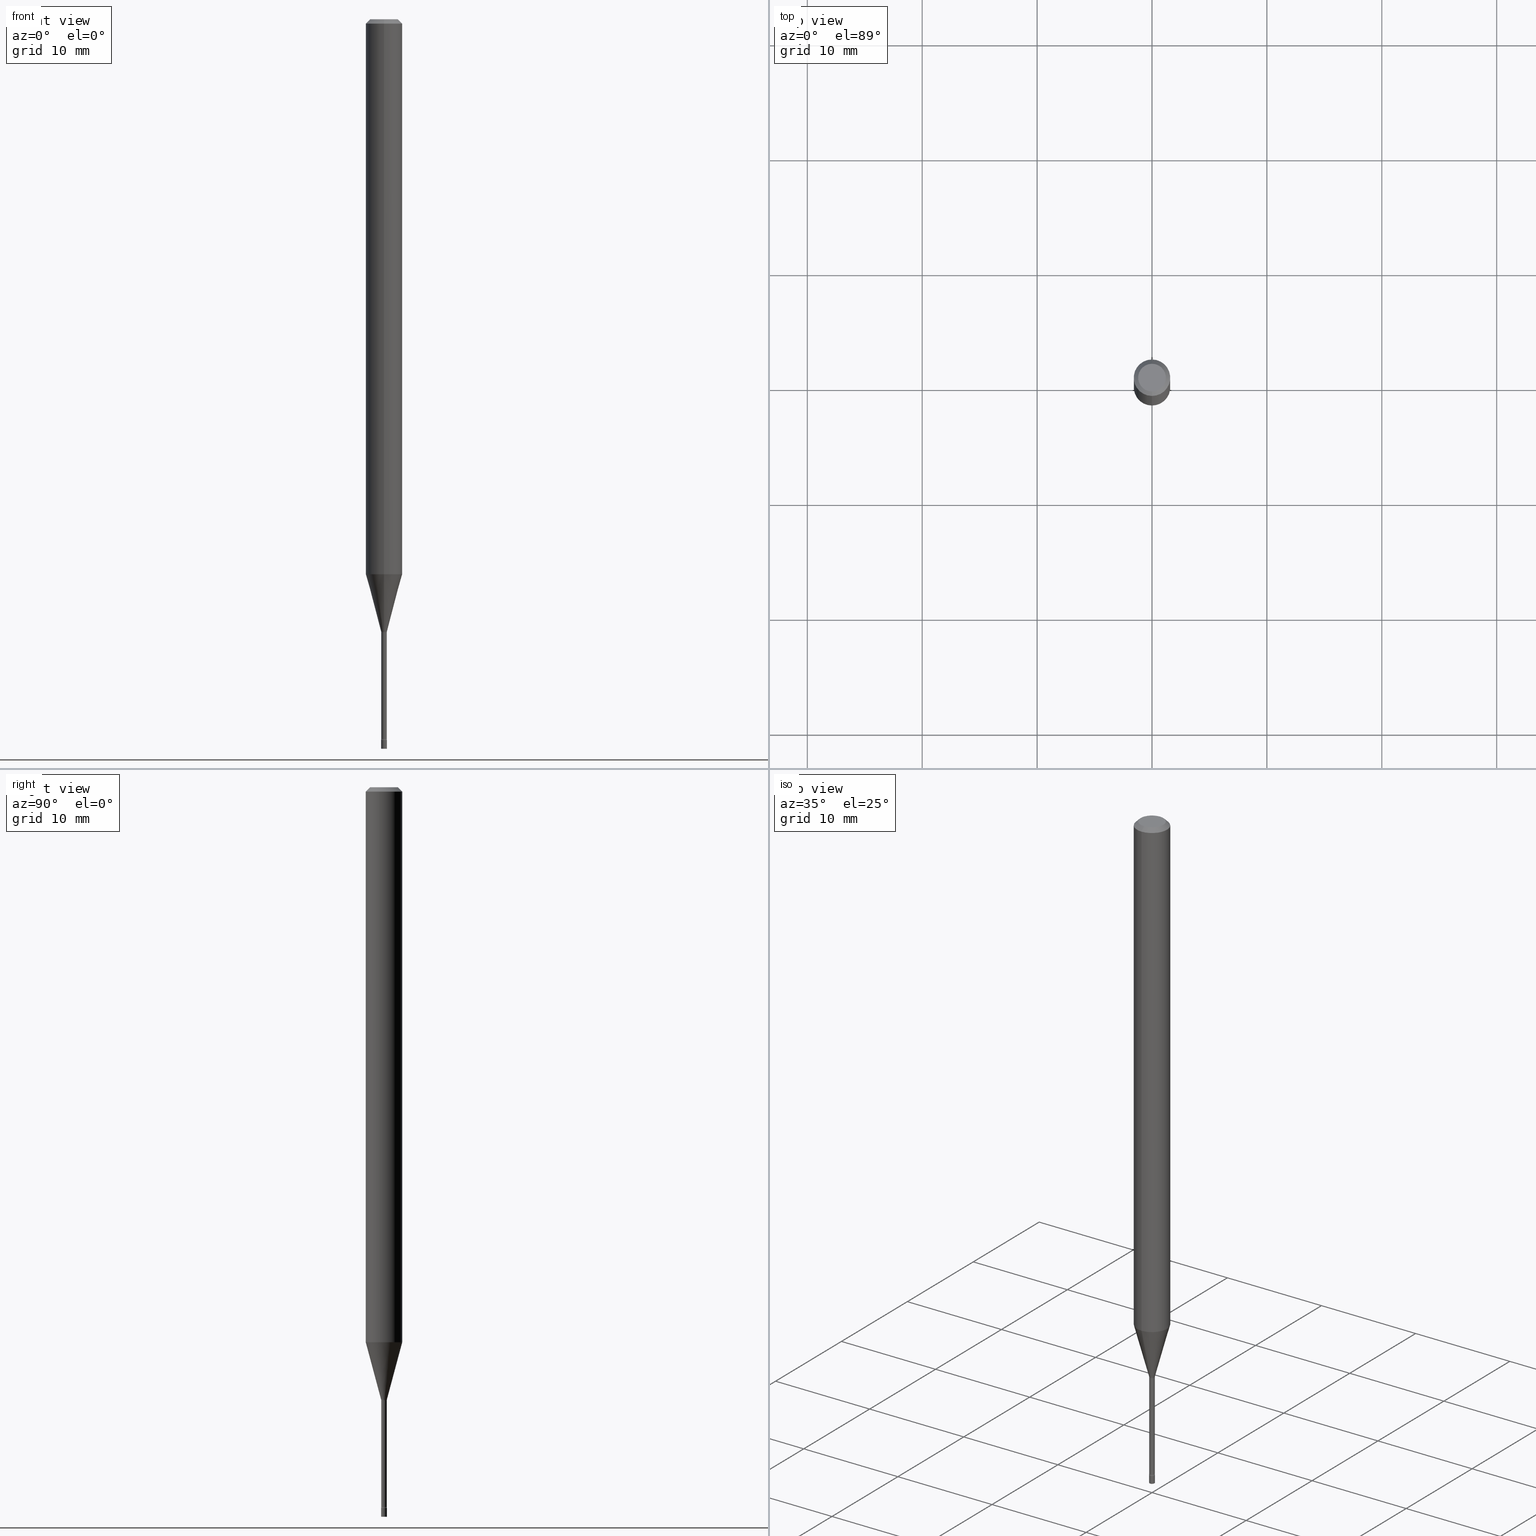
[diagram: canonical four-view strip — front | top / right | iso, engineering-drawing reading convention]
A machine part, canonical four-view strip (front | top / right | iso — engineering-drawing reading convention). The complete STEP part file that produces these views, byte-faithful:
ISO-10303-21;
HEADER;
FILE_DESCRIPTION (( 'STEP AP203' ),
    '1' );
FILE_NAME ('03645.STEP',
    '2024-03-08T22:19:13',
    ( '' ),
    ( '' ),
    'SwSTEP 2.0',
    'SolidWorks 2023',
    '' );
FILE_SCHEMA (( 'CONFIG_CONTROL_DESIGN' ));
ENDSEC;

DATA;
#1 = AXIS2_PLACEMENT_3D ( 'NONE', #275, #69, #158 ) ;
#2 = CC_DESIGN_APPROVAL ( #253, ( #514 ) ) ;
#3 = CARTESIAN_POINT ( 'NONE',  ( 0.000000000000000000, 0.000000000000000000, 0.000000000000000000 ) ) ;
#4 = CARTESIAN_POINT ( 'NONE',  ( 6.892264536879020353E-17, 0.009399999999991423896, -2.465800000000000214 ) ) ;
#5 = EDGE_CURVE ( 'NONE', #497, #377, #201, .T. ) ;
#6 = DIRECTION ( 'NONE',  ( -2.445405021934253134E-29, 3.491572681520784952E-15, 1.000000000000000000 ) ) ;
#7 = EDGE_CURVE ( 'NONE', #459, #368, #480, .T. ) ;
#8 = CIRCLE ( 'NONE', #76, 0.04749999999999999362 ) ;
#9 = AXIS2_PLACEMENT_3D ( 'NONE', #484, #375, #338 ) ;
#10 = CARTESIAN_POINT ( 'NONE',  ( 6.040307951277287977E-29, -8.623958906942569995E-15, -2.470000000000000195 ) ) ;
#11 = DIRECTION ( 'NONE',  ( -2.445468806185136597E-29, 3.491481338843145583E-15, 1.000000000000000000 ) ) ;
#12 = CALENDAR_DATE ( 2024, 8, 3 ) ;
#13 = ORIENTED_EDGE ( 'NONE', *, *, #135, .F. ) ;
#14 = EDGE_CURVE ( 'NONE', #372, #96, #35, .T. ) ;
#15 = LINE ( 'NONE', #327, #77 ) ;
#16 = ORIENTED_EDGE ( 'NONE', *, *, #379, .F. ) ;
#17 = DATE_AND_TIME ( #12, #133 ) ;
#18 = DIRECTION ( 'NONE',  ( 1.000000000000000000, -6.982962677686235945E-15, 0.000000000000000000 ) ) ;
#19 = CIRCLE ( 'NONE', #312, 0.01000000000000000021 ) ;
#20 = DIRECTION ( 'NONE',  ( -2.445405021934253134E-29, 3.491572681520784952E-15, 1.000000000000000000 ) ) ;
#21 = CARTESIAN_POINT ( 'NONE',  ( 5.140313774130382338E-29, -7.339005745148683013E-15, -2.101974787463810834 ) ) ;
#22 = ORIENTED_EDGE ( 'NONE', *, *, #295, .T. ) ;
#23 = DIRECTION ( 'NONE',  ( 0.000000000000000000, 0.000000000000000000, 1.000000000000000000 ) ) ;
#24 = ORIENTED_EDGE ( 'NONE', *, *, #119, .F. ) ;
#25 = COORDINATED_UNIVERSAL_TIME_OFFSET ( 5, 0, .BEHIND. ) ;
#26 = ORIENTED_EDGE ( 'NONE', *, *, #294, .T. ) ;
#27 = COORDINATED_UNIVERSAL_TIME_OFFSET ( 5, 0, .BEHIND. ) ;
#28 = PLANE ( 'NONE',  #501 ) ;
#29 = VECTOR ( 'NONE', #78, 39.37007874015748143 ) ;
#30 = CC_DESIGN_APPROVAL ( #428, ( #499 ) ) ;
#31 = CARTESIAN_POINT ( 'NONE',  ( 7.042269065260026074E-17, 0.009911112605656653002, -2.098092501787272912 ) ) ;
#32 = DATE_AND_TIME ( #511, #352 ) ;
#33 = CARTESIAN_POINT ( 'NONE',  ( -6.563984917025101170E-17, -0.009400000000000015982, 3.282078320629543527E-17 ) ) ;
#34 = FACE_OUTER_BOUND ( 'NONE', #506, .T. ) ;
#35 = CIRCLE ( 'NONE', #325, 0.009911112605663977004 ) ;
#36 = AXIS2_PLACEMENT_3D ( 'NONE', #122, #434, #283 ) ;
#37 = ORGANIZATION ( 'UNSPECIFIED', 'UNSPECIFIED', '' ) ;
#38 = CARTESIAN_POINT ( 'NONE',  ( 6.679101716144951870E-17, 0.009400000000000015982, -3.282078320629543527E-17 ) ) ;
#39 = EDGE_LOOP ( 'NONE', ( #219, #334, #116, #54 ) ) ;
#40 = CC_DESIGN_PERSON_AND_ORGANIZATION_ASSIGNMENT ( #343, #71, ( #402 ) ) ;
#41 = DIRECTION ( 'NONE',  ( -2.445405021934253134E-29, 3.491572681520784952E-15, 1.000000000000000000 ) ) ;
#42 = ADVANCED_FACE ( 'NONE', ( #387 ), #310, .T. ) ;
#43 = CARTESIAN_POINT ( 'NONE',  ( -4.287811248607203282E-16, -0.06250000000000005551, -0.01499999999999981209 ) ) ;
#44 = ORIENTED_EDGE ( 'NONE', *, *, #419, .T. ) ;
#45 = AXIS2_PLACEMENT_3D ( 'NONE', #95, #450, #102 ) ;
#46 = EDGE_CURVE ( 'NONE', #451, #339, #8, .T. ) ;
#47 = CARTESIAN_POINT ( 'NONE',  ( -0.01000000000000000021, -8.605276853449206598E-15, -2.500000000000000000 ) ) ;
#48 = DIRECTION ( 'NONE',  ( -2.445405021934253134E-29, 3.491572681520784952E-15, 1.000000000000000000 ) ) ;
#49 = CYLINDRICAL_SURFACE ( 'NONE', #346, 0.009400000000000015982 ) ;
#50 = AXIS2_PLACEMENT_3D ( 'NONE', #182, #487, #293 ) ;
#51 = AXIS2_PLACEMENT_3D ( 'NONE', #473, #41, #87 ) ;
#52 = CARTESIAN_POINT ( 'NONE',  ( 3.668107532901386708E-31, -5.237359022281188472E-17, -0.01500000000000003067 ) ) ;
#53 = CARTESIAN_POINT ( 'NONE',  ( 5.130685940353198878E-29, -7.325642462544040925E-15, -2.098092501787272912 ) ) ;
#54 = ORIENTED_EDGE ( 'NONE', *, *, #399, .F. ) ;
#55 = CARTESIAN_POINT ( 'NONE',  ( 5.130685940353198878E-29, -7.325642462544040925E-15, -2.098092501787272912 ) ) ;
#56 = ORIENTED_EDGE ( 'NONE', *, *, #357, .T. ) ;
#57 = DATE_AND_TIME ( #278, #176 ) ;
#58 = FACE_OUTER_BOUND ( 'NONE', #416, .T. ) ;
#59 = CONICAL_SURFACE ( 'NONE', #237, 0.06250000000000000000, 0.7853981633974483900 ) ;
#60 = PRODUCT_RELATED_PRODUCT_CATEGORY ( 'detail', '', ( #402 ) ) ;
#61 = DIRECTION ( 'NONE',  ( -2.445405021934253134E-29, 3.491572681520784952E-15, 1.000000000000000000 ) ) ;
#62 = PERSON_AND_ORGANIZATION ( #142, #37 ) ;
#63 = VERTEX_POINT ( 'NONE', #110 ) ;
#64 = APPLICATION_CONTEXT ( 'configuration controlled 3d designs of mechanical parts and assemblies' ) ;
#65 = DIMENSIONAL_EXPONENTS ( 1.000000000000000000, 0.000000000000000000, 0.000000000000000000, 0.000000000000000000, 0.000000000000000000, 0.000000000000000000, 0.000000000000000000 ) ;
#66 = COORDINATED_UNIVERSAL_TIME_OFFSET ( 5, 0, .BEHIND. ) ;
#67 = DIRECTION ( 'NONE',  ( -2.445405021934253134E-29, 3.491572681520784952E-15, 1.000000000000000000 ) ) ;
#68 = PERSON_AND_ORGANIZATION ( #142, #37 ) ;
#69 = DIRECTION ( 'NONE',  ( -2.445405021934253134E-29, 3.491572681520784952E-15, 1.000000000000000000 ) ) ;
#70 = AXIS2_PLACEMENT_3D ( 'NONE', #173, #322, #475 ) ;
#71 = PERSON_AND_ORGANIZATION_ROLE ( 'design_owner' ) ;
#72 = DIRECTION ( 'NONE',  ( -2.445405021934253134E-29, 3.491572681520784952E-15, 1.000000000000000000 ) ) ;
#73 = FACE_OUTER_BOUND ( 'NONE', #342, .T. ) ;
#74 = DIRECTION ( 'NONE',  ( -2.445405021934253134E-29, 3.491572681520784952E-15, 1.000000000000000000 ) ) ;
#75 = ADVANCED_FACE ( 'NONE', ( #465 ), #365, .F. ) ;
#76 = AXIS2_PLACEMENT_3D ( 'NONE', #469, #67, #240 ) ;
#77 = VECTOR ( 'NONE', #220, 39.37007874015748143 ) ;
#78 = DIRECTION ( 'NONE',  ( -2.445468806185136877E-29, 3.491481338843145188E-15, 1.000000000000000000 ) ) ;
#79 = ORIENTED_EDGE ( 'NONE', *, *, #448, .T. ) ;
#80 = EDGE_CURVE ( 'NONE', #368, #459, #432, .T. ) ;
#81 = MANIFOLD_SOLID_BREP ( 'Body-Move/Copy2[1]', #131 ) ;
#82 = DIRECTION ( 'NONE',  ( -2.445405021934253134E-29, 3.491572681520784952E-15, 1.000000000000000000 ) ) ;
#83 = CARTESIAN_POINT ( 'NONE',  ( 0.01000000000000000021, -8.798532973884726663E-15, -2.500000000000000000 ) ) ;
#84 = CIRCLE ( 'NONE', #225, 0.01000000000000000021 ) ;
#85 = LINE ( 'NONE', #43, #170 ) ;
#86 = ORIENTED_EDGE ( 'NONE', *, *, #14, .F. ) ;
#87 = DIRECTION ( 'NONE',  ( -6.982962677686265922E-15, -1.000000000000000000, 3.491572681520784952E-15 ) ) ;
#88 = FACE_OUTER_BOUND ( 'NONE', #123, .T. ) ;
#89 = MANIFOLD_SOLID_BREP ( 'Body-Move/Copy2[2]', #415 ) ;
#90 = CC_DESIGN_PERSON_AND_ORGANIZATION_ASSIGNMENT ( #163, #236, ( #499 ) ) ;
#91 = PERSON_AND_ORGANIZATION_ROLE ( 'creator' ) ;
#92 = CIRCLE ( 'NONE', #491, 0.01500000000000001506 ) ;
#93 = ADVANCED_BREP_SHAPE_REPRESENTATION ( '03645', ( #81, #89, #252 ), #504 ) ;
#94 = LOCAL_TIME ( 17, 19, 13.00000000000000000, #27 ) ;
#95 = CARTESIAN_POINT ( 'NONE',  ( 6.982962677692306673E-17, 0.009999999999991375163, -2.470000000000000195 ) ) ;
#96 = VERTEX_POINT ( 'NONE', #244 ) ;
#97 = APPROVAL_DATE_TIME ( #17, #127 ) ;
#98 = CARTESIAN_POINT ( 'NONE',  ( 0.000000000000000000, 0.000000000000000000, 0.000000000000000000 ) ) ;
#99 = ORIENTED_EDGE ( 'NONE', *, *, #357, .F. ) ;
#100 = ORIENTED_EDGE ( 'NONE', *, *, #247, .F. ) ;
#101 = ADVANCED_FACE ( 'NONE', ( #34 ), #28, .T. ) ;
#102 = DIRECTION ( 'NONE',  ( -6.982962677686265922E-15, -1.000000000000000000, 3.491572681520784952E-15 ) ) ;
#103 = PRODUCT_DEFINITION_SHAPE ( 'NONE', 'NONE',  #499 ) ;
#104 = ADVANCED_FACE ( 'NONE', ( #165 ), #224, .T. ) ;
#105 = EDGE_LOOP ( 'NONE', ( #179, #356, #221, #130 ) ) ;
#106 = DIRECTION ( 'NONE',  ( -1.000000000000000000, 6.982962677686265922E-15, -4.883557194083112340E-29 ) ) ;
#107 = CIRCLE ( 'NONE', #70, 0.01000000000000000021 ) ;
#108 = AXIS2_PLACEMENT_3D ( 'NONE', #412, #106, #189 ) ;
#109 = ORIENTED_EDGE ( 'NONE', *, *, #162, .T. ) ;
#110 = CARTESIAN_POINT ( 'NONE',  ( -4.364351673553912750E-16, -0.06250000000000005551, -0.01499999999999981209 ) ) ;
#111 = APPROVAL_STATUS ( 'not_yet_approved' ) ;
#112 = CARTESIAN_POINT ( 'NONE',  ( 3.668107532901386708E-31, -5.237359022281188472E-17, -0.01500000000000003067 ) ) ;
#113 = EDGE_CURVE ( 'NONE', #497, #63, #508, .T. ) ;
#114 = VERTEX_POINT ( 'NONE', #316 ) ;
#115 = CIRCLE ( 'NONE', #366, 0.01000000000000000021 ) ;
#116 = ORIENTED_EDGE ( 'NONE', *, *, #516, .T. ) ;
#117 =( CONVERSION_BASED_UNIT ( 'INCH', #467 ) LENGTH_UNIT ( ) NAMED_UNIT ( #65 ) );
#118 = LINE ( 'NONE', #33, #207 ) ;
#119 = EDGE_CURVE ( 'NONE', #368, #435, #347, .T. ) ;
#120 = DIRECTION ( 'NONE',  ( -6.982962677686265922E-15, -1.000000000000000000, 3.491572681520784557E-15 ) ) ;
#121 = ADVANCED_FACE ( 'NONE', ( #73 ), #355, .F. ) ;
#122 = CARTESIAN_POINT ( 'NONE',  ( 1.733724275255158309E-16, 0.02439999999999266367, -2.101974787463810834 ) ) ;
#123 = EDGE_LOOP ( 'NONE', ( #99, #478 ) ) ;
#124 = AXIS2_PLACEMENT_3D ( 'NONE', #112, #512, #515 ) ;
#125 = APPROVAL_PERSON_ORGANIZATION ( #460, #428, #424 ) ;
#126 = DIRECTION ( 'NONE',  ( -2.445405021934253134E-29, 3.491572681520784952E-15, 1.000000000000000000 ) ) ;
#127 = APPROVAL ( #187, 'UNSPECIFIED' ) ;
#128 = DIRECTION ( 'NONE',  ( -2.445405021934253134E-29, 3.491572681520784952E-15, 1.000000000000000000 ) ) ;
#129 = CYLINDRICAL_SURFACE ( 'NONE', #305, 0.06250000000000000000 ) ;
#130 = ORIENTED_EDGE ( 'NONE', *, *, #113, .F. ) ;
#131 = CLOSED_SHELL ( 'NONE', ( #42, #101, #403, #144 ) ) ;
#132 = TOROIDAL_SURFACE ( 'NONE', #351, 0.02440000000000004318, 0.01500000000000001159 ) ;
#133 = LOCAL_TIME ( 17, 19, 13.00000000000000000, #218 ) ;
#134 = DIRECTION ( 'NONE',  ( -6.982962677686265922E-15, -1.000000000000000000, 3.483106191921935554E-15 ) ) ;
#135 = EDGE_CURVE ( 'NONE', #368, #261, #490, .T. ) ;
#136 = DIRECTION ( 'NONE',  ( -6.982962677686265922E-15, -1.000000000000000000, 3.483106191921935554E-15 ) ) ;
#137 = DIRECTION ( 'NONE',  ( -6.982962677686265922E-15, -1.000000000000000000, 0.000000000000000000 ) ) ;
#138 = EDGE_LOOP ( 'NONE', ( #385, #374 ) ) ;
#139 = TOROIDAL_SURFACE ( 'NONE', #426, 0.02440000000000000155, 0.01500000000000002720 ) ;
#140 = LOCAL_TIME ( 17, 19, 13.00000000000000000, #25 ) ;
#141 = DIRECTION ( 'NONE',  ( -2.445405021934253134E-29, 3.491572681520784952E-15, 1.000000000000000000 ) ) ;
#142 = PERSON ( 'UNSPECIFIED', 'UNSPECIFIED', 'UNSPECIFIED', ('UNSPECIFIED'), ('UNSPECIFIED'), ('UNSPECIFIED') ) ;
#143 = DATE_TIME_ROLE ( 'classification_date' ) ;
#144 = ADVANCED_FACE ( 'NONE', ( #203 ), #349, .T. ) ;
#145 = DIRECTION ( 'NONE',  ( -2.445405021934253134E-29, 3.491572681520784952E-15, 1.000000000000000000 ) ) ;
#146 = ORIENTED_EDGE ( 'NONE', *, *, #448, .F. ) ;
#147 = ORIENTED_EDGE ( 'NONE', *, *, #200, .T. ) ;
#148 = EDGE_CURVE ( 'NONE', #377, #497, #259, .T. ) ;
#149 = CARTESIAN_POINT ( 'NONE',  ( 4.364351673553919652E-16, 0.06249999999999995143, -0.01500000000000024751 ) ) ;
#150 = ORIENTED_EDGE ( 'NONE', *, *, #354, .F. ) ;
#151 = AXIS2_PLACEMENT_3D ( 'NONE', #277, #74, #120 ) ;
#152 = APPROVAL_STATUS ( 'not_yet_approved' ) ;
#153 = CIRCLE ( 'NONE', #195, 0.009399999999999998634 ) ;
#154 = CIRCLE ( 'NONE', #9, 0.04749999999999999362 ) ;
#155 = VERTEX_POINT ( 'NONE', #238 ) ;
#156 = CALENDAR_DATE ( 2024, 8, 3 ) ;
#157 = EDGE_CURVE ( 'NONE', #372, #497, #431, .T. ) ;
#158 = DIRECTION ( 'NONE',  ( -6.982962677686265922E-15, -1.000000000000000000, 4.370956789862821150E-15 ) ) ;
#159 =( NAMED_UNIT ( * ) SI_UNIT ( $, .STERADIAN. ) SOLID_ANGLE_UNIT ( ) );
#160 = CARTESIAN_POINT ( 'NONE',  ( 3.668107532901386708E-31, -5.237359022281188472E-17, -0.01500000000000003067 ) ) ;
#161 = ORIENTED_EDGE ( 'NONE', *, *, #148, .T. ) ;
#162 = EDGE_CURVE ( 'NONE', #459, #114, #118, .T. ) ;
#163 = PERSON_AND_ORGANIZATION ( #142, #37 ) ;
#164 = CIRCLE ( 'NONE', #326, 0.009399999999999998634 ) ;
#165 = FACE_OUTER_BOUND ( 'NONE', #39, .T. ) ;
#166 = CARTESIAN_POINT ( 'NONE',  ( -4.364351673553916201E-16, -0.06250000000000000000, 2.182232925950490595E-16 ) ) ;
#167 = DIRECTION ( 'NONE',  ( -1.000000000000000000, 6.982962677686265922E-15, -4.876176775795935793E-29 ) ) ;
#168 = ORIENTED_EDGE ( 'NONE', *, *, #80, .F. ) ;
#169 = CARTESIAN_POINT ( 'NONE',  ( 0.000000000000000000, 0.000000000000000000, 0.000000000000000000 ) ) ;
#170 = VECTOR ( 'NONE', #210, 39.37007874015748143 ) ;
#171 = CARTESIAN_POINT ( 'NONE',  ( 4.440892098500625669E-16, 0.06250000000000000000, -2.182232925950490595E-16 ) ) ;
#172 = CARTESIAN_POINT ( 'NONE',  ( 6.113672015462842613E-29, -8.728703347107864943E-15, -2.500000000000000000 ) ) ;
#173 = CARTESIAN_POINT ( 'NONE',  ( 6.040150404177606012E-29, -8.624184523356339300E-15, -2.470000000000000195 ) ) ;
#174 = AXIS2_PLACEMENT_3D ( 'NONE', #290, #6, #520 ) ;
#175 = EDGE_CURVE ( 'NONE', #96, #377, #422, .T. ) ;
#176 = LOCAL_TIME ( 17, 19, 13.00000000000000000, #509 ) ;
#177 = FACE_OUTER_BOUND ( 'NONE', #217, .T. ) ;
#178 = DIRECTION ( 'NONE',  ( 4.937700262164548042E-15, 0.7071067811865451302, -0.7071067811865499042 ) ) ;
#179 = ORIENTED_EDGE ( 'NONE', *, *, #5, .T. ) ;
#180 = EDGE_LOOP ( 'NONE', ( #16, #456, #22, #472 ) ) ;
#181 = FACE_OUTER_BOUND ( 'NONE', #188, .T. ) ;
#182 = CARTESIAN_POINT ( 'NONE',  ( 4.650739991775273824E-29, -6.640371046304054201E-15, -1.901828102118092945 ) ) ;
#183 = ORIENTED_EDGE ( 'NONE', *, *, #440, .F. ) ;
#184 = AXIS2_PLACEMENT_3D ( 'NONE', #318, #400, #134 ) ;
#185 = DIRECTION ( 'NONE',  ( -2.445405021934253134E-29, 3.491572681520784952E-15, 1.000000000000000000 ) ) ;
#186 = DIRECTION ( 'NONE',  ( -6.982962677686265922E-15, -1.000000000000000000, 0.000000000000000000 ) ) ;
#187 = APPROVAL_STATUS ( 'not_yet_approved' ) ;
#188 = EDGE_LOOP ( 'NONE', ( #190, #303, #337, #488 ) ) ;
#189 = DIRECTION ( 'NONE',  ( -6.982962677686265133E-15, -1.000000000000000000, 0.000000000000000000 ) ) ;
#190 = ORIENTED_EDGE ( 'NONE', *, *, #14, .T. ) ;
#191 = EDGE_LOOP ( 'NONE', ( #369, #492, #267, #423 ) ) ;
#192 = ORIENTED_EDGE ( 'NONE', *, *, #212, .T. ) ;
#193 = ORIENTED_EDGE ( 'NONE', *, *, #319, .F. ) ;
#194 = ADVANCED_FACE ( 'NONE', ( #510 ), #59, .T. ) ;
#195 = AXIS2_PLACEMENT_3D ( 'NONE', #331, #145, #137 ) ;
#196 = SECURITY_CLASSIFICATION ( '', '', #485 ) ;
#197 = CARTESIAN_POINT ( 'NONE',  ( 6.040307951277287977E-29, -8.623958906942569995E-15, -2.470000000000000195 ) ) ;
#198 = DIRECTION ( 'NONE',  ( 1.839019923739596765E-15, 0.2588190451025244587, 0.9659258262890673130 ) ) ;
#199 = DIRECTION ( 'NONE',  ( -2.445405021934253134E-29, 3.491572681520784952E-15, 1.000000000000000000 ) ) ;
#200 = EDGE_CURVE ( 'NONE', #96, #372, #417, .T. ) ;
#201 = CIRCLE ( 'NONE', #50, 0.06250000000000000000 ) ;
#202 = AXIS2_PLACEMENT_3D ( 'NONE', #321, #48, #361 ) ;
#203 = FACE_OUTER_BOUND ( 'NONE', #138, .T. ) ;
#204 = DIRECTION ( 'NONE',  ( -2.445405021934253134E-29, 3.491572681520784952E-15, 1.000000000000000000 ) ) ;
#205 = DIRECTION ( 'NONE',  ( -2.445405021934253134E-29, 3.491572681520784952E-15, 1.000000000000000000 ) ) ;
#206 = FACE_OUTER_BOUND ( 'NONE', #452, .T. ) ;
#207 = VECTOR ( 'NONE', #72, 39.37007874015748143 ) ;
#208 = TOROIDAL_SURFACE ( 'NONE', #320, 0.02440000000000000155, 0.01500000000000002720 ) ;
#209 = DIRECTION ( 'NONE',  ( -2.445468806185136597E-29, 3.491481338843145583E-15, 1.000000000000000000 ) ) ;
#210 = DIRECTION ( 'NONE',  ( -4.851104656540964275E-15, -0.7071067811865500152, -0.7071067811865450192 ) ) ;
#211 = DIRECTION ( 'NONE',  ( 1.000000000000000000, -6.982962677686235945E-15, 0.000000000000000000 ) ) ;
#212 = EDGE_CURVE ( 'NONE', #420, #155, #115, .T. ) ;
#213 = AXIS2_PLACEMENT_3D ( 'NONE', #314, #204, #464 ) ;
#214 = VECTOR ( 'NONE', #199, 39.37007874015748143 ) ;
#215 = AXIS2_PLACEMENT_3D ( 'NONE', #52, #381, #136 ) ;
#216 = DIRECTION ( 'NONE',  ( -6.982962677686265922E-15, -1.000000000000000000, 3.491572681520784557E-15 ) ) ;
#217 = EDGE_LOOP ( 'NONE', ( #455, #273, #518, #146 ) ) ;
#218 = COORDINATED_UNIVERSAL_TIME_OFFSET ( 5, 0, .BEHIND. ) ;
#219 = ORIENTED_EDGE ( 'NONE', *, *, #479, .F. ) ;
#220 = DIRECTION ( 'NONE',  ( -2.445468806185136877E-29, 3.491481338843145188E-15, 1.000000000000000000 ) ) ;
#221 = ORIENTED_EDGE ( 'NONE', *, *, #516, .F. ) ;
#222 = DIRECTION ( 'NONE',  ( -6.982962677686265922E-15, -1.000000000000000000, 0.000000000000000000 ) ) ;
#223 = CARTESIAN_POINT ( 'NONE',  ( 5.130685940353198878E-29, -7.325642462544040925E-15, -2.098092501787272912 ) ) ;
#224 = CONICAL_SURFACE ( 'NONE', #124, 0.06250000000000000000, 0.7853981633974483900 ) ;
#225 = AXIS2_PLACEMENT_3D ( 'NONE', #404, #301, #299 ) ;
#226 = DIRECTION ( 'NONE',  ( -6.982962677686265922E-15, -1.000000000000000000, 0.000000000000000000 ) ) ;
#227 = ADVANCED_FACE ( 'NONE', ( #206 ), #132, .F. ) ;
#228 = CARTESIAN_POINT ( 'NONE',  ( 6.029879703085482125E-29, -8.609519918093951458E-15, -2.465800000000000214 ) ) ;
#229 = CYLINDRICAL_SURFACE ( 'NONE', #359, 0.01000000000000000021 ) ;
#230 = ADVANCED_FACE ( 'NONE', ( #439 ), #470, .T. ) ;
#231 = SHAPE_DEFINITION_REPRESENTATION ( #103, #93 ) ;
#232 = ORIENTED_EDGE ( 'NONE', *, *, #235, .F. ) ;
#233 = APPROVAL_DATE_TIME ( #32, #428 ) ;
#234 = DIRECTION ( 'NONE',  ( 1.000000000000000000, -6.982962677686265922E-15, 4.876176775795935793E-29 ) ) ;
#235 = EDGE_CURVE ( 'NONE', #262, #63, #481, .T. ) ;
#236 = PERSON_AND_ORGANIZATION_ROLE ( 'creator' ) ;
#237 = AXIS2_PLACEMENT_3D ( 'NONE', #160, #280, #350 ) ;
#238 = CARTESIAN_POINT ( 'NONE',  ( 0.01000000000000000021, -8.693788533719433294E-15, -2.470000000000000195 ) ) ;
#239 = APPLICATION_PROTOCOL_DEFINITION ( 'international standard', 'config_control_design', 1994, #476 ) ;
#240 = DIRECTION ( 'NONE',  ( -6.982962677686266711E-15, -1.000000000000000000, 3.491572681520784557E-15 ) ) ;
#241 = DIRECTION ( 'NONE',  ( 1.000000000000000000, -7.105427357601001070E-15, 4.926316627167260117E-29 ) ) ;
#242 = AXIS2_PLACEMENT_3D ( 'NONE', #429, #309, #234 ) ;
#243 = AXIS2_PLACEMENT_3D ( 'NONE', #169, #397, #286 ) ;
#244 = CARTESIAN_POINT ( 'NONE',  ( 2.572559502513548023E-16, 0.009911112605656653002, -2.098092501787272912 ) ) ;
#245 = ORIENTED_EDGE ( 'NONE', *, *, #80, .T. ) ;
#246 = CARTESIAN_POINT ( 'NONE',  ( 7.105427357607042956E-17, 0.009999999999991380367, -2.470000000000000195 ) ) ;
#247 = EDGE_CURVE ( 'NONE', #96, #435, #405, .T. ) ;
#248 = DIRECTION ( 'NONE',  ( 1.000000000000000000, -6.982962677686235945E-15, 0.000000000000000000 ) ) ;
#249 = VERTEX_POINT ( 'NONE', #47 ) ;
#250 = DIRECTION ( 'NONE',  ( -6.982962677686265922E-15, -1.000000000000000000, 0.000000000000000000 ) ) ;
#251 = AXIS2_PLACEMENT_3D ( 'NONE', #53, #61, #226 ) ;
#252 = AXIS2_PLACEMENT_3D ( 'NONE', #274, #23, #507 ) ;
#253 = APPROVAL ( #111, 'UNSPECIFIED' ) ;
#254 = DIRECTION ( 'NONE',  ( -6.982962677686265922E-15, -1.000000000000000000, 3.491572681520784952E-15 ) ) ;
#255 = EDGE_LOOP ( 'NONE', ( #100, #86, #79, #410 ) ) ;
#256 = LINE ( 'NONE', #364, #29 ) ;
#257 = CARTESIAN_POINT ( 'NONE',  ( 4.440892098501090604E-16, 0.06249999999999336642, -1.901828102118093167 ) ) ;
#258 = ORIENTED_EDGE ( 'NONE', *, *, #113, .T. ) ;
#259 = CIRCLE ( 'NONE', #1, 0.06250000000000000000 ) ;
#260 = CARTESIAN_POINT ( 'NONE',  ( -6.563984917019083641E-17, -0.009400000000008642762, -2.465800000000000214 ) ) ;
#261 = VERTEX_POINT ( 'NONE', #246 ) ;
#262 = VERTEX_POINT ( 'NONE', #441 ) ;
#263 = CARTESIAN_POINT ( 'NONE',  ( 6.679101716150981726E-17, 0.009399999999992659019, -2.101974787463810834 ) ) ;
#264 = EDGE_LOOP ( 'NONE', ( #193, #519, #502, #380 ) ) ;
#265 = PERSON_AND_ORGANIZATION ( #142, #37 ) ;
#266 = ORIENTED_EDGE ( 'NONE', *, *, #419, .F. ) ;
#267 = ORIENTED_EDGE ( 'NONE', *, *, #315, .F. ) ;
#268 = AXIS2_PLACEMENT_3D ( 'NONE', #228, #446, #332 ) ;
#269 = ORIENTED_EDGE ( 'NONE', *, *, #272, .T. ) ;
#270 = CIRCLE ( 'NONE', #378, 0.01000000000000000021 ) ;
#271 = CARTESIAN_POINT ( 'NONE',  ( -4.364351673553452252E-16, -0.06250000000000664746, -1.901828102118092501 ) ) ;
#272 = EDGE_CURVE ( 'NONE', #261, #298, #394, .T. ) ;
#273 = ORIENTED_EDGE ( 'NONE', *, *, #247, .T. ) ;
#274 = CARTESIAN_POINT ( 'NONE',  ( 0.000000000000000000, 0.000000000000000000, 0.000000000000000000 ) ) ;
#275 = CARTESIAN_POINT ( 'NONE',  ( 4.650739991775273824E-29, -6.640371046304054201E-15, -1.901828102118092945 ) ) ;
#276 = DATE_AND_TIME ( #156, #94 ) ;
#277 = CARTESIAN_POINT ( 'NONE',  ( 6.030036982291310238E-29, -8.609294685319429365E-15, -2.465800000000000214 ) ) ;
#278 = CALENDAR_DATE ( 2024, 8, 3 ) ;
#279 = CARTESIAN_POINT ( 'NONE',  ( 1.733724275255250261E-16, 0.02439999999999143548, -2.465800000000000214 ) ) ;
#280 = DIRECTION ( 'NONE',  ( 2.445405021934253134E-29, -3.491572681520784952E-15, -1.000000000000000000 ) ) ;
#281 = CARTESIAN_POINT ( 'NONE',  ( 6.982962677692379396E-17, 0.009999999999991271080, -2.500000000000000000 ) ) ;
#282 = AXIS2_PLACEMENT_3D ( 'NONE', #279, #241, #425 ) ;
#283 = DIRECTION ( 'NONE',  ( 7.105427357601003436E-15, 1.000000000000000000, 0.000000000000000000 ) ) ;
#284 = APPROVAL_PERSON_ORGANIZATION ( #62, #127, #408 ) ;
#285 = LINE ( 'NONE', #171, #445 ) ;
#286 = DIRECTION ( 'NONE',  ( -6.982962677686265922E-15, -1.000000000000000000, 3.491572681520784952E-15 ) ) ;
#287 = CC_DESIGN_PERSON_AND_ORGANIZATION_ASSIGNMENT ( #265, #386, ( #514 ) ) ;
#288 = VECTOR ( 'NONE', #391, 39.37007874015748854 ) ;
#289 = CC_DESIGN_SECURITY_CLASSIFICATION ( #196, ( #514 ) ) ;
#290 = CARTESIAN_POINT ( 'NONE',  ( 6.040150404177606012E-29, -8.624184523356339300E-15, -2.470000000000000195 ) ) ;
#291 = PLANE ( 'NONE',  #45 ) ;
#292 = DIRECTION ( 'NONE',  ( -2.445405021934253134E-29, 3.491572681520784952E-15, 1.000000000000000000 ) ) ;
#293 = DIRECTION ( 'NONE',  ( -6.982962677686265922E-15, -1.000000000000000000, 4.370956789862821150E-15 ) ) ;
#294 = EDGE_CURVE ( 'NONE', #330, #249, #270, .T. ) ;
#295 = EDGE_CURVE ( 'NONE', #330, #155, #256, .T. ) ;
#296 = VECTOR ( 'NONE', #392, 39.37007874015748143 ) ;
#297 = CONICAL_SURFACE ( 'NONE', #482, 0.009911112605663977004, 0.2617993877991497409 ) ;
#298 = VERTEX_POINT ( 'NONE', #401 ) ;
#299 = DIRECTION ( 'NONE',  ( 1.000000000000000000, -6.982962677686235945E-15, 0.000000000000000000 ) ) ;
#300 = ORIENTED_EDGE ( 'NONE', *, *, #379, .T. ) ;
#301 = DIRECTION ( 'NONE',  ( -2.445468806185136597E-29, 3.491481338843145583E-15, 1.000000000000000000 ) ) ;
#302 = FACE_OUTER_BOUND ( 'NONE', #255, .T. ) ;
#303 = ORIENTED_EDGE ( 'NONE', *, *, #175, .T. ) ;
#304 = ORIENTED_EDGE ( 'NONE', *, *, #390, .F. ) ;
#305 = AXIS2_PLACEMENT_3D ( 'NONE', #483, #292, #418 ) ;
#306 = CC_DESIGN_APPROVAL ( #127, ( #196 ) ) ;
#307 = ORIENTED_EDGE ( 'NONE', *, *, #175, .F. ) ;
#308 = MECHANICAL_CONTEXT ( 'NONE', #476, 'mechanical' ) ;
#309 = DIRECTION ( 'NONE',  ( -2.445468806185136597E-29, 3.491481338843145583E-15, 1.000000000000000000 ) ) ;
#310 = CYLINDRICAL_SURFACE ( 'NONE', #242, 0.01000000000000000021 ) ;
#311 = DESIGN_CONTEXT ( 'detailed design', #64, 'design' ) ;
#312 = AXIS2_PLACEMENT_3D ( 'NONE', #453, #11, #18 ) ;
#313 =( LENGTH_UNIT ( ) NAMED_UNIT ( * ) SI_UNIT ( $, .METRE. ) );
#314 = CARTESIAN_POINT ( 'NONE',  ( 6.029879703085482125E-29, -8.609519918093951458E-15, -2.465800000000000214 ) ) ;
#315 = EDGE_CURVE ( 'NONE', #114, #435, #164, .T. ) ;
#316 = CARTESIAN_POINT ( 'NONE',  ( -6.563984917019948922E-17, -0.009400000000007338249, -2.101974787463810834 ) ) ;
#317 = CC_DESIGN_DATE_AND_TIME_ASSIGNMENT ( #276, #463, ( #499 ) ) ;
#318 = CARTESIAN_POINT ( 'NONE',  ( 3.668107532901386708E-31, -5.237359022281188472E-17, -0.01500000000000003067 ) ) ;
#319 = EDGE_CURVE ( 'NONE', #339, #63, #85, .T. ) ;
#320 = AXIS2_PLACEMENT_3D ( 'NONE', #486, #371, #216 ) ;
#321 = CARTESIAN_POINT ( 'NONE',  ( 5.130685940353198878E-29, -7.325642462544040925E-15, -2.098092501787272912 ) ) ;
#322 = DIRECTION ( 'NONE',  ( -2.445405021934253134E-29, 3.491572681520784952E-15, 1.000000000000000000 ) ) ;
#323 = CYLINDRICAL_SURFACE ( 'NONE', #243, 0.06250000000000000000 ) ;
#324 = CARTESIAN_POINT ( 'NONE',  ( 6.030036982291310238E-29, -8.609294685319429365E-15, -2.465800000000000214 ) ) ;
#325 = AXIS2_PLACEMENT_3D ( 'NONE', #223, #20, #186 ) ;
#326 = AXIS2_PLACEMENT_3D ( 'NONE', #436, #126, #250 ) ;
#327 = CARTESIAN_POINT ( 'NONE',  ( -0.01000000000000000021, 7.105427357601002007E-17, -4.918935090254906272E-31 ) ) ;
#328 = FACE_OUTER_BOUND ( 'NONE', #180, .T. ) ;
#329 = ORIENTED_EDGE ( 'NONE', *, *, #440, .T. ) ;
#330 = VERTEX_POINT ( 'NONE', #83 ) ;
#331 = CARTESIAN_POINT ( 'NONE',  ( 5.140179701243188102E-29, -7.339197745154101052E-15, -2.101974787463810834 ) ) ;
#332 = DIRECTION ( 'NONE',  ( -6.982962677686265922E-15, -1.000000000000000000, 0.000000000000000000 ) ) ;
#333 = PERSON_AND_ORGANIZATION ( #142, #37 ) ;
#334 = ORIENTED_EDGE ( 'NONE', *, *, #319, .T. ) ;
#335 = DIRECTION ( 'NONE',  ( -6.982962677686265922E-15, -1.000000000000000000, 3.491572681520784557E-15 ) ) ;
#336 = ORIENTED_EDGE ( 'NONE', *, *, #148, .F. ) ;
#337 = ORIENTED_EDGE ( 'NONE', *, *, #5, .F. ) ;
#338 = DIRECTION ( 'NONE',  ( -6.982962677686266711E-15, -1.000000000000000000, 3.491572681520784557E-15 ) ) ;
#339 = VERTEX_POINT ( 'NONE', #396 ) ;
#340 = ORIENTED_EDGE ( 'NONE', *, *, #135, .T. ) ;
#341 = PERSON_AND_ORGANIZATION_ROLE ( 'classification_officer' ) ;
#342 = EDGE_LOOP ( 'NONE', ( #344, #498 ) ) ;
#343 = PERSON_AND_ORGANIZATION ( #142, #37 ) ;
#344 = ORIENTED_EDGE ( 'NONE', *, *, #46, .T. ) ;
#345 = EDGE_LOOP ( 'NONE', ( #24, #245, #109, #304 ) ) ;
#346 = AXIS2_PLACEMENT_3D ( 'NONE', #3, #205, #254 ) ;
#347 = LINE ( 'NONE', #38, #214 ) ;
#348 = ADVANCED_FACE ( 'NONE', ( #362 ), #49, .T. ) ;
#349 = PLANE ( 'NONE',  #513 ) ;
#350 = DIRECTION ( 'NONE',  ( 6.982962677686265922E-15, 1.000000000000000000, -3.483106191921935554E-15 ) ) ;
#351 = AXIS2_PLACEMENT_3D ( 'NONE', #324, #128, #398 ) ;
#352 = LOCAL_TIME ( 17, 19, 13.00000000000000000, #66 ) ;
#353 = DIRECTION ( 'NONE',  ( -2.438088387897960049E-29, 3.491481338843145188E-15, 1.000000000000000000 ) ) ;
#354 = EDGE_CURVE ( 'NONE', #377, #262, #285, .T. ) ;
#355 = PLANE ( 'NONE',  #503 ) ;
#356 = ORIENTED_EDGE ( 'NONE', *, *, #354, .T. ) ;
#357 = EDGE_CURVE ( 'NONE', #298, #261, #107, .T. ) ;
#358 = FACE_OUTER_BOUND ( 'NONE', #105, .T. ) ;
#359 = AXIS2_PLACEMENT_3D ( 'NONE', #98, #489, #409 ) ;
#360 = DIRECTION ( 'NONE',  ( -2.445468806185136597E-29, 3.491481338843145583E-15, 1.000000000000000000 ) ) ;
#361 = DIRECTION ( 'NONE',  ( -6.982962677686265922E-15, -1.000000000000000000, 0.000000000000000000 ) ) ;
#362 = FACE_OUTER_BOUND ( 'NONE', #345, .T. ) ;
#363 = EDGE_LOOP ( 'NONE', ( #26, #300, #183, #382 ) ) ;
#364 = CARTESIAN_POINT ( 'NONE',  ( 0.01000000000000000021, -6.982962677686265724E-17, 4.876176775795935968E-31 ) ) ;
#365 = TOROIDAL_SURFACE ( 'NONE', #151, 0.02440000000000004318, 0.01500000000000001159 ) ;
#366 = AXIS2_PLACEMENT_3D ( 'NONE', #10, #209, #211 ) ;
#367 = CC_DESIGN_DATE_AND_TIME_ASSIGNMENT ( #493, #143, ( #196 ) ) ;
#368 = VERTEX_POINT ( 'NONE', #4 ) ;
#369 = ORIENTED_EDGE ( 'NONE', *, *, #7, .T. ) ;
#370 = ADVANCED_FACE ( 'NONE', ( #358 ), #323, .T. ) ;
#371 = DIRECTION ( 'NONE',  ( -2.445405021934253134E-29, 3.491572681520784952E-15, 1.000000000000000000 ) ) ;
#372 = VERTEX_POINT ( 'NONE', #437 ) ;
#373 = APPROVAL_DATE_TIME ( #57, #253 ) ;
#374 = ORIENTED_EDGE ( 'NONE', *, *, #430, .F. ) ;
#375 = DIRECTION ( 'NONE',  ( -2.445405021934253134E-29, 3.491572681520784952E-15, 1.000000000000000000 ) ) ;
#376 = ADVANCED_FACE ( 'NONE', ( #477 ), #129, .T. ) ;
#377 = VERTEX_POINT ( 'NONE', #257 ) ;
#378 = AXIS2_PLACEMENT_3D ( 'NONE', #172, #360, #248 ) ;
#379 = EDGE_CURVE ( 'NONE', #249, #420, #15, .T. ) ;
#380 = ORIENTED_EDGE ( 'NONE', *, *, #235, .T. ) ;
#381 = DIRECTION ( 'NONE',  ( -2.445405021934253134E-29, 3.491572681520784952E-15, 1.000000000000000000 ) ) ;
#382 = ORIENTED_EDGE ( 'NONE', *, *, #295, .F. ) ;
#383 = ADVANCED_FACE ( 'NONE', ( #181 ), #433, .T. ) ;
#384 = EDGE_LOOP ( 'NONE', ( #13, #454, #44, #56 ) ) ;
#385 = ORIENTED_EDGE ( 'NONE', *, *, #294, .F. ) ;
#386 = PERSON_AND_ORGANIZATION_ROLE ( 'design_supplier' ) ;
#387 = FACE_OUTER_BOUND ( 'NONE', #363, .T. ) ;
#388 = VECTOR ( 'NONE', #198, 39.37007874015748143 ) ;
#389 = APPROVAL_ROLE ( '' ) ;
#390 = EDGE_CURVE ( 'NONE', #435, #114, #153, .T. ) ;
#391 = DIRECTION ( 'NONE',  ( -1.807323732225326589E-15, -0.2588190451025176864, 0.9659258262890690894 ) ) ;
#392 = DIRECTION ( 'NONE',  ( -2.445405021934253134E-29, 3.491572681520784952E-15, 1.000000000000000000 ) ) ;
#393 = CARTESIAN_POINT ( 'NONE',  ( -6.920892941964612771E-17, -0.009911112605671302742, -2.098092501787272912 ) ) ;
#394 = CIRCLE ( 'NONE', #174, 0.01000000000000000021 ) ;
#395 = DIRECTION ( 'NONE',  ( 1.000000000000000000, -6.982962677686265922E-15, 4.876176775795935793E-29 ) ) ;
#396 = CARTESIAN_POINT ( 'NONE',  ( -3.773273898774340269E-16, -0.04749999999999999362, 1.369401302215561349E-16 ) ) ;
#397 = DIRECTION ( 'NONE',  ( -2.445405021934253134E-29, 3.491572681520784952E-15, 1.000000000000000000 ) ) ;
#398 = DIRECTION ( 'NONE',  ( -6.982962677686265922E-15, -1.000000000000000000, 3.491572681520784557E-15 ) ) ;
#399 = EDGE_CURVE ( 'NONE', #451, #262, #444, .T. ) ;
#400 = DIRECTION ( 'NONE',  ( -2.445405021934253134E-29, 3.491572681520784952E-15, 1.000000000000000000 ) ) ;
#401 = CARTESIAN_POINT ( 'NONE',  ( -6.982962677680230939E-17, -0.01000000000000862872, -2.470000000000000195 ) ) ;
#402 = PRODUCT ( '03645', '03645', '', ( #308 ) ) ;
#403 = ADVANCED_FACE ( 'NONE', ( #328 ), #229, .T. ) ;
#404 = CARTESIAN_POINT ( 'NONE',  ( 6.040307951277287977E-29, -8.623958906942569995E-15, -2.470000000000000195 ) ) ;
#405 = CIRCLE ( 'NONE', #36, 0.01500000000000002373 ) ;
#406 = ADVANCED_FACE ( 'NONE', ( #177 ), #139, .F. ) ;
#407 = EDGE_LOOP ( 'NONE', ( #150, #161, #258, #232 ) ) ;
#408 = APPROVAL_ROLE ( '' ) ;
#409 = DIRECTION ( 'NONE',  ( 1.000000000000000000, -6.982962677686265922E-15, 4.876176775795935793E-29 ) ) ;
#410 = ORIENTED_EDGE ( 'NONE', *, *, #315, .T. ) ;
#411 = ADVANCED_FACE ( 'NONE', ( #302 ), #208, .F. ) ;
#412 = CARTESIAN_POINT ( 'NONE',  ( -1.703842893354934874E-16, -0.02440000000000733943, -2.101974787463810834 ) ) ;
#413 = CALENDAR_DATE ( 2024, 8, 3 ) ;
#414 = CARTESIAN_POINT ( 'NONE',  ( -1.703842893354849086E-16, -0.02440000000000865435, -2.465800000000000214 ) ) ;
#415 = CLOSED_SHELL ( 'NONE', ( #406, #230, #227, #104, #370, #383, #457, #376, #194, #121, #442, #75, #348, #411 ) ) ;
#416 = EDGE_LOOP ( 'NONE', ( #307, #147, #494, #336 ) ) ;
#417 = CIRCLE ( 'NONE', #202, 0.009911112605663977004 ) ;
#418 = DIRECTION ( 'NONE',  ( -6.982962677686265922E-15, -1.000000000000000000, 3.491572681520784952E-15 ) ) ;
#419 = EDGE_CURVE ( 'NONE', #459, #298, #92, .T. ) ;
#420 = VERTEX_POINT ( 'NONE', #496 ) ;
#421 =( NAMED_UNIT ( * ) PLANE_ANGLE_UNIT ( ) SI_UNIT ( $, .RADIAN. ) );
#422 = LINE ( 'NONE', #31, #388 ) ;
#423 = ORIENTED_EDGE ( 'NONE', *, *, #162, .F. ) ;
#424 = APPROVAL_ROLE ( '' ) ;
#425 = DIRECTION ( 'NONE',  ( 7.105427357601001859E-15, 1.000000000000000000, 0.000000000000000000 ) ) ;
#426 = AXIS2_PLACEMENT_3D ( 'NONE', #21, #141, #335 ) ;
#427 = DIRECTION ( 'NONE',  ( 2.438088387897960049E-29, -3.491481338843145188E-15, -1.000000000000000000 ) ) ;
#428 = APPROVAL ( #152, 'UNSPECIFIED' ) ;
#429 = CARTESIAN_POINT ( 'NONE',  ( 0.000000000000000000, 0.000000000000000000, 0.000000000000000000 ) ) ;
#430 = EDGE_CURVE ( 'NONE', #249, #330, #19, .T. ) ;
#431 = LINE ( 'NONE', #393, #288 ) ;
#432 = CIRCLE ( 'NONE', #213, 0.009400000000000033329 ) ;
#433 = CONICAL_SURFACE ( 'NONE', #251, 0.009911112605663977004, 0.2617993877991497409 ) ;
#434 = DIRECTION ( 'NONE',  ( 1.000000000000000000, -7.105427357601001070E-15, 4.926316627167260117E-29 ) ) ;
#435 = VERTEX_POINT ( 'NONE', #263 ) ;
#436 = CARTESIAN_POINT ( 'NONE',  ( 5.140179701243188102E-29, -7.339197745154101052E-15, -2.101974787463810834 ) ) ;
#437 = CARTESIAN_POINT ( 'NONE',  ( -6.920892941964612771E-17, -0.009911112605671302742, -2.098092501787272912 ) ) ;
#438 = CIRCLE ( 'NONE', #108, 0.01500000000000003240 ) ;
#439 = FACE_OUTER_BOUND ( 'NONE', #191, .T. ) ;
#440 = EDGE_CURVE ( 'NONE', #155, #420, #84, .T. ) ;
#441 = CARTESIAN_POINT ( 'NONE',  ( 4.440892098501093562E-16, 0.06249999999999993755, -0.01500000000000024751 ) ) ;
#442 = ADVANCED_FACE ( 'NONE', ( #88 ), #291, .F. ) ;
#443 = CARTESIAN_POINT ( 'NONE',  ( 3.840629472727447874E-16, 0.04749999999999999362, -1.947592745229184365E-16 ) ) ;
#444 = LINE ( 'NONE', #149, #471 ) ;
#445 = VECTOR ( 'NONE', #82, 39.37007874015748143 ) ;
#446 = DIRECTION ( 'NONE',  ( -2.445405021934253134E-29, 3.491572681520784952E-15, 1.000000000000000000 ) ) ;
#447 = APPROVAL_PERSON_ORGANIZATION ( #68, #253, #389 ) ;
#448 = EDGE_CURVE ( 'NONE', #372, #114, #438, .T. ) ;
#449 = PERSON_AND_ORGANIZATION ( #142, #37 ) ;
#450 = DIRECTION ( 'NONE',  ( -2.445405021934252854E-29, 3.491572681520784952E-15, 1.000000000000000000 ) ) ;
#451 = VERTEX_POINT ( 'NONE', #443 ) ;
#452 = EDGE_LOOP ( 'NONE', ( #168, #340, #269, #266 ) ) ;
#453 = CARTESIAN_POINT ( 'NONE',  ( 6.113672015462842613E-29, -8.728703347107864943E-15, -2.500000000000000000 ) ) ;
#454 = ORIENTED_EDGE ( 'NONE', *, *, #7, .F. ) ;
#455 = ORIENTED_EDGE ( 'NONE', *, *, #200, .F. ) ;
#456 = ORIENTED_EDGE ( 'NONE', *, *, #430, .T. ) ;
#457 = ADVANCED_FACE ( 'NONE', ( #58 ), #297, .T. ) ;
#458 = DIRECTION ( 'NONE',  ( -6.982962677686262766E-15, -1.000000000000000000, 0.000000000000000000 ) ) ;
#459 = VERTEX_POINT ( 'NONE', #260 ) ;
#460 = PERSON_AND_ORGANIZATION ( #142, #37 ) ;
#461 = CC_DESIGN_PERSON_AND_ORGANIZATION_ASSIGNMENT ( #333, #91, ( #514 ) ) ;
#462 = DIRECTION ( 'NONE',  ( 2.445405021934252854E-29, -3.491572681520784952E-15, -1.000000000000000000 ) ) ;
#463 = DATE_TIME_ROLE ( 'creation_date' ) ;
#464 = DIRECTION ( 'NONE',  ( -6.982962677686265922E-15, -1.000000000000000000, 0.000000000000000000 ) ) ;
#465 = FACE_OUTER_BOUND ( 'NONE', #384, .T. ) ;
#466 = CIRCLE ( 'NONE', #215, 0.06250000000000000000 ) ;
#467 = LENGTH_MEASURE_WITH_UNIT ( LENGTH_MEASURE( 0.02539999999999999897 ), #313 );
#468 = DIRECTION ( 'NONE',  ( 6.982962677686265922E-15, 1.000000000000000000, -3.491572681520784952E-15 ) ) ;
#469 = CARTESIAN_POINT ( 'NONE',  ( 7.069561291924629655E-46, -1.009398723557723704E-31, -2.890957215068114468E-17 ) ) ;
#470 = CYLINDRICAL_SURFACE ( 'NONE', #51, 0.009400000000000015982 ) ;
#471 = VECTOR ( 'NONE', #178, 39.37007874015748143 ) ;
#472 = ORIENTED_EDGE ( 'NONE', *, *, #212, .F. ) ;
#473 = CARTESIAN_POINT ( 'NONE',  ( 0.000000000000000000, 0.000000000000000000, 0.000000000000000000 ) ) ;
#474 = CC_DESIGN_PERSON_AND_ORGANIZATION_ASSIGNMENT ( #449, #341, ( #196 ) ) ;
#475 = DIRECTION ( 'NONE',  ( -6.982962677686265922E-15, -1.000000000000000000, 0.000000000000000000 ) ) ;
#476 = APPLICATION_CONTEXT ( 'configuration controlled 3d designs of mechanical parts and assemblies' ) ;
#477 = FACE_OUTER_BOUND ( 'NONE', #407, .T. ) ;
#478 = ORIENTED_EDGE ( 'NONE', *, *, #272, .F. ) ;
#479 = EDGE_CURVE ( 'NONE', #339, #451, #154, .T. ) ;
#480 = CIRCLE ( 'NONE', #268, 0.009400000000000033329 ) ;
#481 = CIRCLE ( 'NONE', #184, 0.06250000000000000000 ) ;
#482 = AXIS2_PLACEMENT_3D ( 'NONE', #55, #185, #222 ) ;
#483 = CARTESIAN_POINT ( 'NONE',  ( 0.000000000000000000, 0.000000000000000000, 0.000000000000000000 ) ) ;
#484 = CARTESIAN_POINT ( 'NONE',  ( 7.069561291924629655E-46, -1.009398723557723704E-31, -2.890957215068114468E-17 ) ) ;
#485 = SECURITY_CLASSIFICATION_LEVEL ( 'unclassified' ) ;
#486 = CARTESIAN_POINT ( 'NONE',  ( 5.140313774130382338E-29, -7.339005745148683013E-15, -2.101974787463810834 ) ) ;
#487 = DIRECTION ( 'NONE',  ( -2.445405021934253134E-29, 3.491572681520784952E-15, 1.000000000000000000 ) ) ;
#488 = ORIENTED_EDGE ( 'NONE', *, *, #157, .F. ) ;
#489 = DIRECTION ( 'NONE',  ( -2.445468806185136597E-29, 3.491481338843145583E-15, 1.000000000000000000 ) ) ;
#490 = CIRCLE ( 'NONE', #282, 0.01500000000000000638 ) ;
#491 = AXIS2_PLACEMENT_3D ( 'NONE', #414, #495, #458 ) ;
#492 = ORIENTED_EDGE ( 'NONE', *, *, #119, .T. ) ;
#493 = DATE_AND_TIME ( #413, #140 ) ;
#494 = ORIENTED_EDGE ( 'NONE', *, *, #157, .T. ) ;
#495 = DIRECTION ( 'NONE',  ( -1.000000000000000000, 6.982962677686265922E-15, -4.883557194083112340E-29 ) ) ;
#496 = CARTESIAN_POINT ( 'NONE',  ( -0.01000000000000000021, -8.605276853449206598E-15, -2.470000000000000195 ) ) ;
#497 = VERTEX_POINT ( 'NONE', #271 ) ;
#498 = ORIENTED_EDGE ( 'NONE', *, *, #479, .T. ) ;
#499 = PRODUCT_DEFINITION ( 'UNKNOWN', '', #514, #311 ) ;
#500 = APPLICATION_PROTOCOL_DEFINITION ( 'international standard', 'config_control_design', 1994, #64 ) ;
#501 = AXIS2_PLACEMENT_3D ( 'NONE', #197, #353, #395 ) ;
#502 = ORIENTED_EDGE ( 'NONE', *, *, #399, .T. ) ;
#503 = AXIS2_PLACEMENT_3D ( 'NONE', #517, #462, #468 ) ;
#504 =( GEOMETRIC_REPRESENTATION_CONTEXT ( 3 ) GLOBAL_UNCERTAINTY_ASSIGNED_CONTEXT ( ( #505 ) ) GLOBAL_UNIT_ASSIGNED_CONTEXT ( ( #117, #421, #159 ) ) REPRESENTATION_CONTEXT ( 'NONE', 'WORKASPACE' ) );
#505 = UNCERTAINTY_MEASURE_WITH_UNIT (LENGTH_MEASURE( 1.000000000000000082E-05 ), #117, 'distance_accuracy_value', 'NONE');
#506 = EDGE_LOOP ( 'NONE', ( #329, #192 ) ) ;
#507 = DIRECTION ( 'NONE',  ( 1.000000000000000000, 0.000000000000000000, 0.000000000000000000 ) ) ;
#508 = LINE ( 'NONE', #166, #296 ) ;
#509 = COORDINATED_UNIVERSAL_TIME_OFFSET ( 5, 0, .BEHIND. ) ;
#510 = FACE_OUTER_BOUND ( 'NONE', #264, .T. ) ;
#511 = CALENDAR_DATE ( 2024, 8, 3 ) ;
#512 = DIRECTION ( 'NONE',  ( 2.445405021934253134E-29, -3.491572681520784952E-15, -1.000000000000000000 ) ) ;
#513 = AXIS2_PLACEMENT_3D ( 'NONE', #281, #427, #167 ) ;
#514 = PRODUCT_DEFINITION_FORMATION_WITH_SPECIFIED_SOURCE ( 'ANY', '', #402, .NOT_KNOWN. ) ;
#515 = DIRECTION ( 'NONE',  ( 6.982962677686265922E-15, 1.000000000000000000, -3.483106191921935554E-15 ) ) ;
#516 = EDGE_CURVE ( 'NONE', #63, #262, #466, .T. ) ;
#517 = CARTESIAN_POINT ( 'NONE',  ( 3.316907271900976096E-16, 0.04749999999999999362, -1.803044884475778426E-16 ) ) ;
#518 = ORIENTED_EDGE ( 'NONE', *, *, #390, .T. ) ;
#519 = ORIENTED_EDGE ( 'NONE', *, *, #46, .F. ) ;
#520 = DIRECTION ( 'NONE',  ( -6.982962677686265922E-15, -1.000000000000000000, 0.000000000000000000 ) ) ;
ENDSEC;
END-ISO-10303-21;
